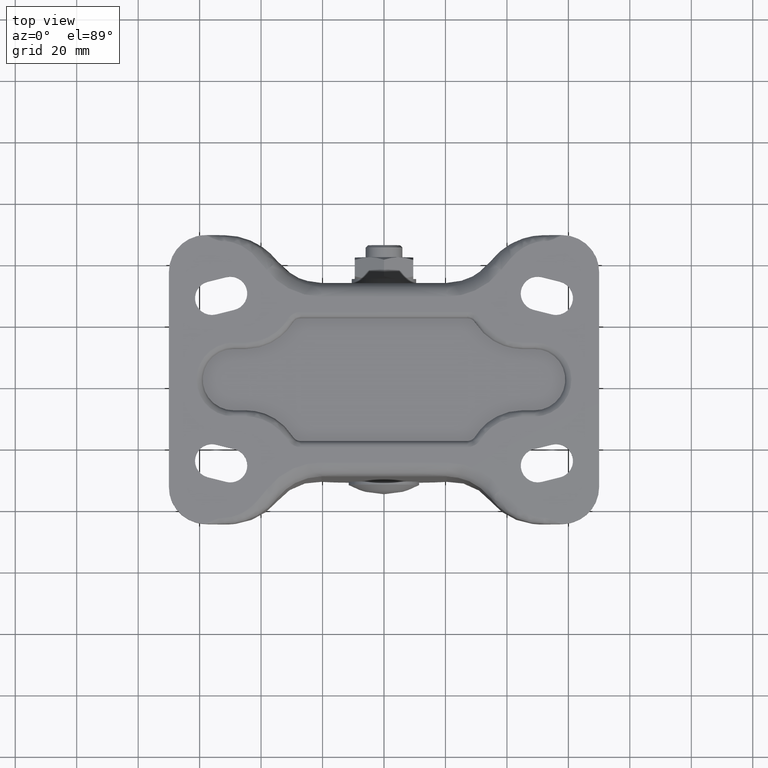
[diagram: clean part render]
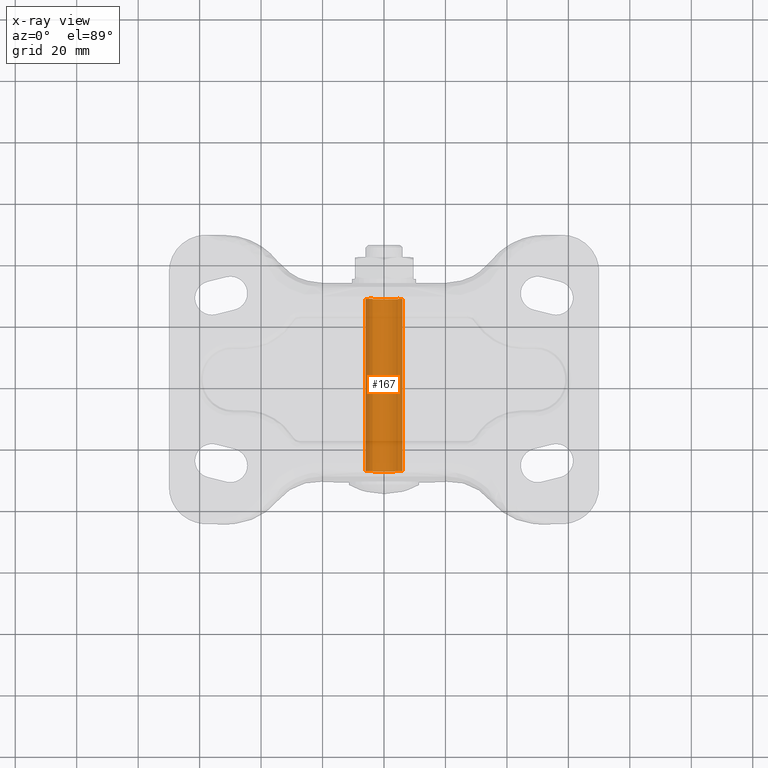
[diagram: x-ray — body ghosted, one internal face saturated and labeled with its STEP entity id]
A machine part, top view, then the same camera in x-ray: the body is ghosted and one INTERNAL B-rep face — a face not visible from any outside direction — is saturated and labeled: STEP entity #167.
In plain terms, the highlighted face is a freeform B-spline surface patch.
Its self-contained STEP definition (entity closure, byte-faithful):
#44=CARTESIAN_POINT('',(-3.712205772819780,29.400000000000016,4.713759465675289));
#45=CARTESIAN_POINT('',(-3.847111543559367,29.400000000000002,4.607517731328655));
#46=CARTESIAN_POINT('',(-3.975720289294410,29.400000000000009,4.493734324734011));
#47=CARTESIAN_POINT('',(-8.469454614028422,29.399999999999999,0.518014035439587));
#48=CARTESIAN_POINT('',(-4.493734324733997,29.400000000000009,-3.975720289294424));
#49=CARTESIAN_POINT('',(-0.518014035439573,29.399999999999999,-8.469454614028436));
#50=CARTESIAN_POINT('',(3.975720289294438,29.400000000000009,-4.493734324734011));
#51=CARTESIAN_POINT('',(8.469454614028450,29.399999999999999,-0.518014035439587));
#52=CARTESIAN_POINT('',(4.493734324734025,29.400000000000009,3.975720289294424));
#53=CARTESIAN_POINT('',(-3.712205772819780,-29.435000000000016,4.713759465675289));
#54=CARTESIAN_POINT('',(-3.847111543559367,-29.434999999999999,4.607517731328655));
#55=CARTESIAN_POINT('',(-3.975720289294410,-29.435000000000009,4.493734324734011));
#56=CARTESIAN_POINT('',(-8.469454614028422,-29.435000000000006,0.518014035439587));
#57=CARTESIAN_POINT('',(-4.493734324733997,-29.435000000000009,-3.975720289294424));
#58=CARTESIAN_POINT('',(-0.518014035439573,-29.435000000000006,-8.469454614028436));
#59=CARTESIAN_POINT('',(3.975720289294438,-29.435000000000009,-4.493734324734011));
#60=CARTESIAN_POINT('',(8.469454614028450,-29.435000000000006,-0.518014035439587));
#61=CARTESIAN_POINT('',(4.493734324734025,-29.435000000000009,3.975720289294424));
#69=(BOUNDED_SURFACE()B_SPLINE_SURFACE(2,1,((#44,#53),(#45,#54),(#46,#55),(#47,#56),(#48,#57),(#49,#58),(#50,#59),(#51,#60),(#52,#61)),.UNSPECIFIED.,.F.,.F.,.U.)B_SPLINE_SURFACE_WITH_KNOTS((3,2,2,2,3),(2,2),(0.0,0.397645019878172,10.338770516832451,20.279896013786729,30.221021510741011),(0.0,58.835000000000022),.UNSPECIFIED.)GEOMETRIC_REPRESENTATION_ITEM()RATIONAL_B_SPLINE_SURFACE(((0.977505800795127,0.977505800795127),(0.988284271247462,0.988284271247462),(1.0,1.0),(0.707106781186548,0.707106781186548),(1.0,1.0),(0.707106781186548,0.707106781186548),(1.0,1.0),(0.707106781186548,0.707106781186548),(1.0,1.0)))REPRESENTATION_ITEM('')SURFACE());
#70=CARTESIAN_POINT('',(-3.712200534981435,-27.999999999999911,4.713763590597113));
#71=VERTEX_POINT('',#70);
#72=CARTESIAN_POINT('',(-5.999999999999987,-28.0,0.0));
#73=VERTEX_POINT('',#72);
#74=CARTESIAN_POINT('',(-3.712200534981436,-27.999999999999904,4.713763590597113));
#75=CARTESIAN_POINT('',(-5.999999999999988,-28.000000000000007,2.912067295328709));
#76=CARTESIAN_POINT('',(-5.999999999999987,-28.0,0.0));
#84=(BOUNDED_CURVE()B_SPLINE_CURVE(2,(#74,#75,#76),.UNSPECIFIED.,.F.,.U.)B_SPLINE_CURVE_WITH_KNOTS((3,3),(0.357127372637441,0.500000000000000),.UNSPECIFIED.)CURVE()GEOMETRIC_REPRESENTATION_ITEM()RATIONAL_B_SPLINE_CURVE((0.856547282362541,0.832614305165780,1.0))REPRESENTATION_ITEM(''));
#85=EDGE_CURVE('',#71,#73,#84,.T.);
#86=ORIENTED_EDGE('',*,*,#85,.T.);
#87=CARTESIAN_POINT('',(6.000000000000014,-28.0,0.0));
#88=VERTEX_POINT('',#87);
#89=CARTESIAN_POINT('',(-5.999999999999987,-28.0,0.0));
#90=CARTESIAN_POINT('',(-5.999999999999985,-27.999999999999996,-6.0));
#91=CARTESIAN_POINT('',(1.421085E-014,-28.0,-6.0));
#92=CARTESIAN_POINT('',(6.000000000000014,-27.999999999999996,-6.0));
#93=CARTESIAN_POINT('',(6.000000000000014,-28.0,0.0));
#101=(BOUNDED_CURVE()B_SPLINE_CURVE(2,(#89,#90,#91,#92,#93),.UNSPECIFIED.,.F.,.U.)B_SPLINE_CURVE_WITH_KNOTS((3,2,3),(0.500000000000000,0.750000000000000,1.0),.UNSPECIFIED.)CURVE()GEOMETRIC_REPRESENTATION_ITEM()RATIONAL_B_SPLINE_CURVE((1.0,0.707106781186548,1.0,0.707106781186548,1.0))REPRESENTATION_ITEM(''));
#102=EDGE_CURVE('',#73,#88,#101,.T.);
#103=ORIENTED_EDGE('',*,*,#102,.T.);
#104=CARTESIAN_POINT('',(4.493738131870448,-28.000000000000060,3.975715986101196));
#105=VERTEX_POINT('',#104);
#106=CARTESIAN_POINT('',(6.000000000000014,-28.0,0.0));
#107=CARTESIAN_POINT('',(6.000000000000014,-27.999999999999996,2.273193367020069));
#108=CARTESIAN_POINT('',(4.493738131870448,-28.000000000000060,3.975715986101197));
#116=(BOUNDED_CURVE()B_SPLINE_CURVE(2,(#106,#107,#108),.UNSPECIFIED.,.F.,.U.)B_SPLINE_CURVE_WITH_KNOTS((3,3),(0.0,0.115779743434360),.UNSPECIFIED.)CURVE()GEOMETRIC_REPRESENTATION_ITEM()RATIONAL_B_SPLINE_CURVE((1.0,0.864355593088459,0.854350183221111))REPRESENTATION_ITEM(''));
#117=EDGE_CURVE('',#88,#105,#116,.T.);
#118=ORIENTED_EDGE('',*,*,#117,.T.);
#119=CARTESIAN_POINT('',(4.493738274907708,28.0,3.975715824426348));
#120=VERTEX_POINT('',#119);
#121=CARTESIAN_POINT('',(4.493738274907708,28.0,3.975715824426348));
#122=CARTESIAN_POINT('',(4.493738131870448,-28.000000000000060,3.975715986101196));
#123=QUASI_UNIFORM_CURVE('',1,(#121,#122),.UNSPECIFIED.,.F.,.U.);
#124=EDGE_CURVE('',#120,#105,#123,.T.);
#125=ORIENTED_EDGE('',*,*,#124,.F.);
#126=CARTESIAN_POINT('',(1.421085E-014,28.0,-6.0));
#127=VERTEX_POINT('',#126);
#128=CARTESIAN_POINT('',(1.421085E-014,28.0,-6.0));
#129=CARTESIAN_POINT('',(6.000000000000014,27.999999999999996,-6.0));
#130=CARTESIAN_POINT('',(6.000000000000014,28.0,0.0));
#131=CARTESIAN_POINT('',(6.000000000000014,28.000000000000004,2.273193243594086));
#132=CARTESIAN_POINT('',(4.493738274907708,28.000000000000007,3.975715824426349));
#140=(BOUNDED_CURVE()B_SPLINE_CURVE(2,(#128,#129,#130,#131,#132),.UNSPECIFIED.,.F.,.U.)B_SPLINE_CURVE_WITH_KNOTS((3,2,3),(0.500000000000000,0.750000000000000,0.865779738000665),.UNSPECIFIED.)CURVE()GEOMETRIC_REPRESENTATION_ITEM()RATIONAL_B_SPLINE_CURVE((1.0,0.707106781186548,1.0,0.864355599454429,0.854350184160245))REPRESENTATION_ITEM(''));
#141=EDGE_CURVE('',#127,#120,#140,.T.);
#142=ORIENTED_EDGE('',*,*,#141,.F.);
#143=CARTESIAN_POINT('',(-3.712200599579286,28.0,4.713763539724889));
#144=VERTEX_POINT('',#143);
#145=CARTESIAN_POINT('',(-3.712200599579286,27.999999999999996,4.713763539724889));
#146=CARTESIAN_POINT('',(-5.999999999999986,28.000000000000004,2.912067244532095));
#147=CARTESIAN_POINT('',(-5.999999999999987,28.0,0.0));
#148=CARTESIAN_POINT('',(-5.999999999999985,27.999999999999996,-6.0));
#149=CARTESIAN_POINT('',(1.421085E-014,28.0,-6.0));
#157=(BOUNDED_CURVE()B_SPLINE_CURVE(2,(#145,#146,#147,#148,#149),.UNSPECIFIED.,.F.,.U.)B_SPLINE_CURVE_WITH_KNOTS((3,2,3),(0.107127374712480,0.250000000000000,0.500000000000000),.UNSPECIFIED.)CURVE()GEOMETRIC_REPRESENTATION_ITEM()RATIONAL_B_SPLINE_CURVE((0.856547281667350,0.832614307596840,1.0,0.707106781186548,1.0))REPRESENTATION_ITEM(''));
#158=EDGE_CURVE('',#144,#127,#157,.T.);
#159=ORIENTED_EDGE('',*,*,#158,.F.);
#160=CARTESIAN_POINT('',(-3.712200599579286,28.0,4.713763539724889));
#161=CARTESIAN_POINT('',(-3.712200534981435,-27.999999999999911,4.713763590597113));
#162=QUASI_UNIFORM_CURVE('',1,(#160,#161),.UNSPECIFIED.,.F.,.U.);
#163=EDGE_CURVE('',#144,#71,#162,.T.);
#164=ORIENTED_EDGE('',*,*,#163,.T.);
#165=EDGE_LOOP('',(#86,#103,#118,#125,#142,#159,#164));
#166=FACE_OUTER_BOUND('',#165,.T.);
#167=ADVANCED_FACE('',(#166),#69,.F.);